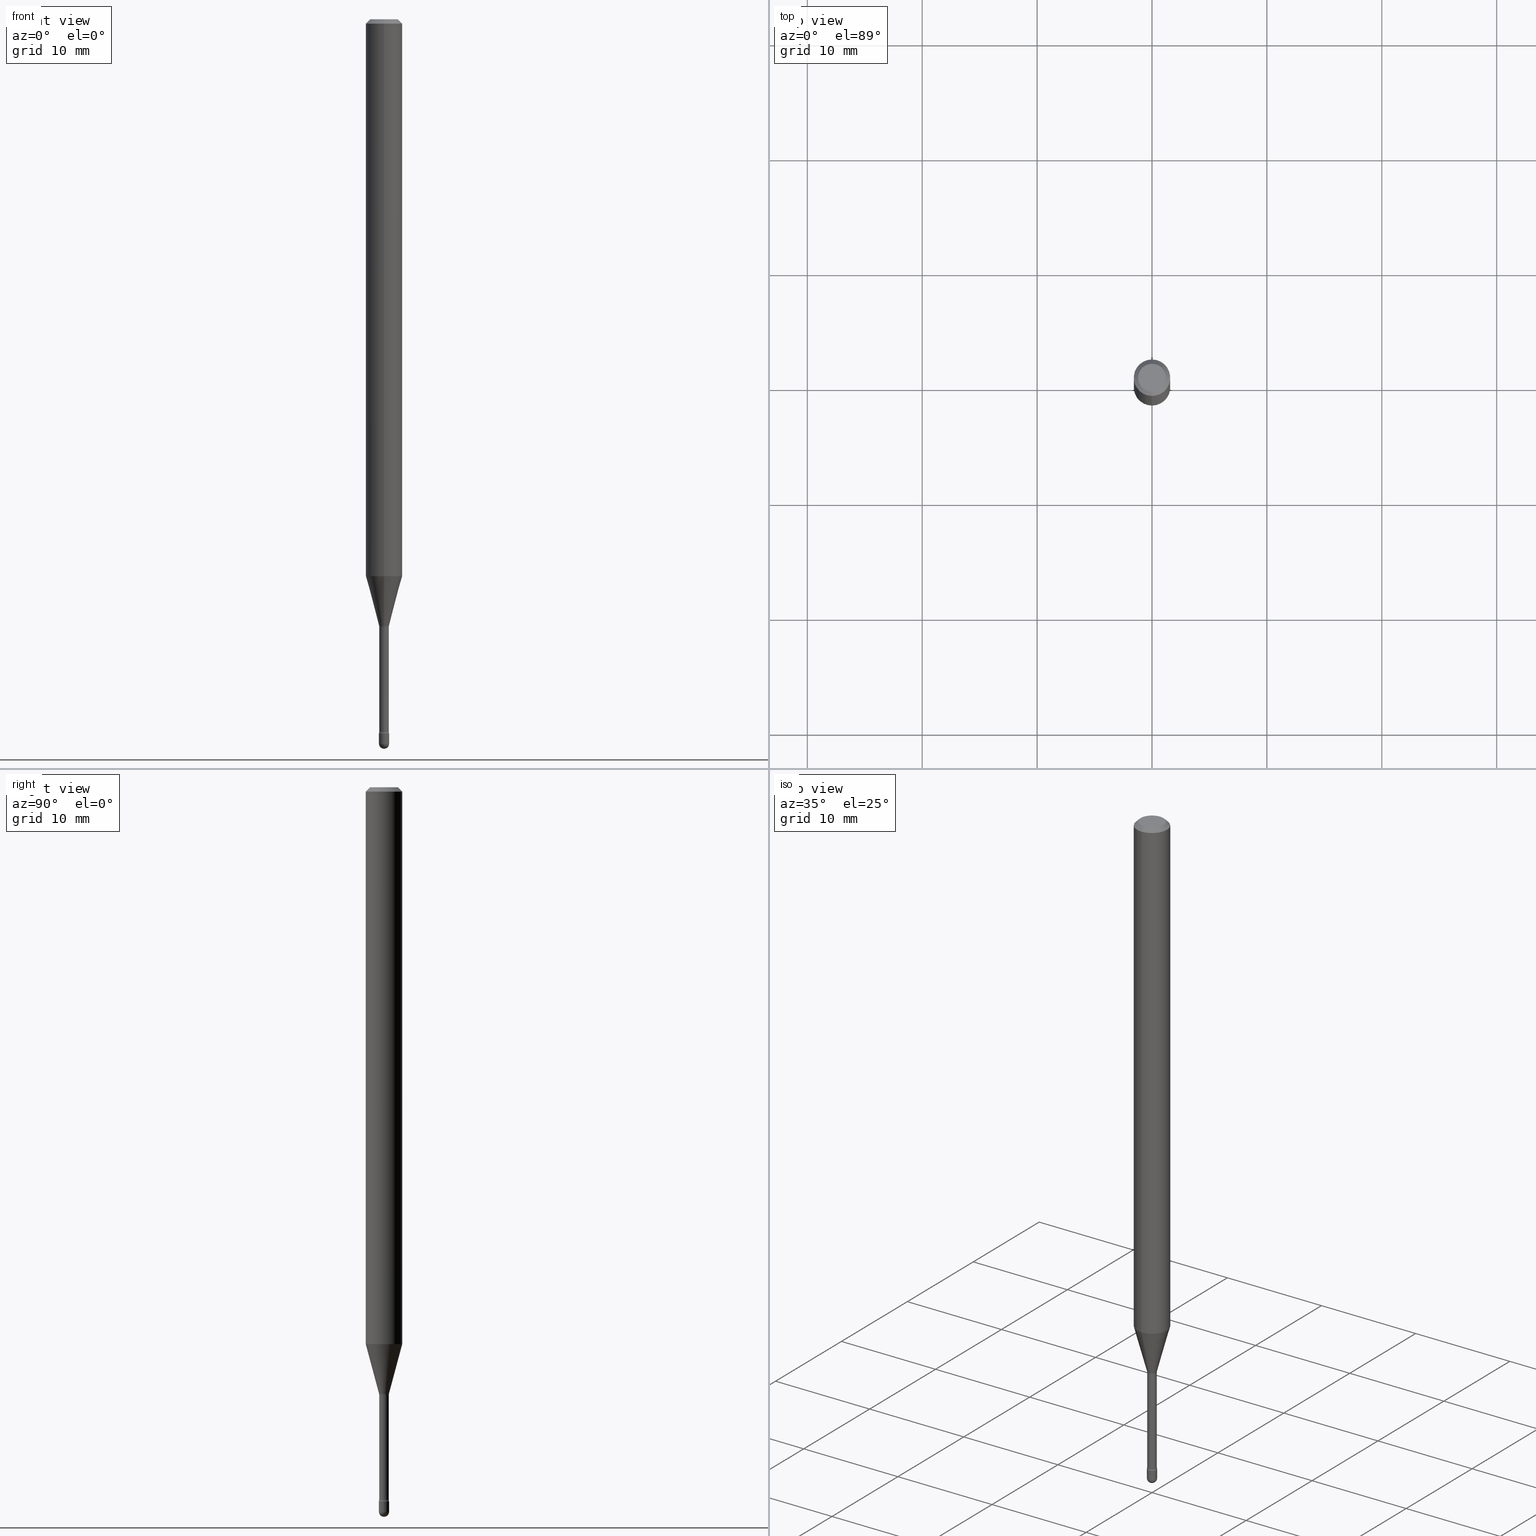
[diagram: canonical four-view strip — front | top / right | iso, engineering-drawing reading convention]
A machine part, canonical four-view strip (front | top / right | iso — engineering-drawing reading convention). The complete STEP part file that produces these views, byte-faithful:
ISO-10303-21;
HEADER;
FILE_DESCRIPTION (( 'STEP AP203' ),
    '1' );
FILE_NAME ('03892.STEP',
    '2024-04-09T20:59:43',
    ( '' ),
    ( '' ),
    'SwSTEP 2.0',
    'SolidWorks 2023',
    '' );
FILE_SCHEMA (( 'CONFIG_CONTROL_DESIGN' ));
ENDSEC;

DATA;
#1 = CALENDAR_DATE ( 2024, 9, 4 ) ;
#2 = DIRECTION ( 'NONE',  ( -2.445474670097060204E-29, 3.491472941387518154E-15, 1.000000000000000000 ) ) ;
#3 = CARTESIAN_POINT ( 'NONE',  ( 0.000000000000000000, 0.000000000000000000, 0.000000000000000000 ) ) ;
#4 = FACE_OUTER_BOUND ( 'NONE', #453, .T. ) ;
#5 = CARTESIAN_POINT ( 'NONE',  ( -1.148697360478799118E-16, -0.01645000000000860010, -2.441486607215153537 ) ) ;
#6 = DIRECTION ( 'NONE',  ( -2.445468806185136877E-29, 3.491481338843145188E-15, 1.000000000000000000 ) ) ;
#7 = DIRECTION ( 'NONE',  ( -6.982962677686265922E-15, -1.000000000000000000, 3.483106191921935554E-15 ) ) ;
#8 = CARTESIAN_POINT ( 'NONE',  ( -0.01749999999999999820, -8.481283651155627354E-15, -2.482500000000000817 ) ) ;
#9 = ADVANCED_FACE ( 'NONE', ( #486 ), #405, .T. ) ;
#10 = AXIS2_PLACEMENT_3D ( 'NONE', #102, #57, #226 ) ;
#11 = DIRECTION ( 'NONE',  ( -2.445474670097060204E-29, 3.491472941387518154E-15, 1.000000000000000000 ) ) ;
#12 = PRODUCT_RELATED_PRODUCT_CATEGORY ( 'detail', '', ( #317 ) ) ;
#13 = DESIGN_CONTEXT ( 'detailed design', #52, 'design' ) ;
#14 = CARTESIAN_POINT ( 'NONE',  ( 5.091404398006680369E-29, -7.269176118371821293E-15, -2.081974787463811261 ) ) ;
#15 = AXIS2_PLACEMENT_3D ( 'NONE', #265, #447, #362 ) ;
#16 = AXIS2_PLACEMENT_3D ( 'NONE', #442, #95, #7 ) ;
#17 = VECTOR ( 'NONE', #6, 39.37007874015748143 ) ;
#18 = DIRECTION ( 'NONE',  ( 1.000000000000000000, -6.982962677686248567E-15, 0.000000000000000000 ) ) ;
#19 = ORIENTED_EDGE ( 'NONE', *, *, #427, .T. ) ;
#20 = ORIENTED_EDGE ( 'NONE', *, *, #234, .T. ) ;
#21 = ORIENTED_EDGE ( 'NONE', *, *, #496, .F. ) ;
#22 = VECTOR ( 'NONE', #464, 39.37007874015748143 ) ;
#23 = CARTESIAN_POINT ( 'NONE',  ( 4.364351673553919652E-16, 0.06249999999999995143, -0.01500000000000030129 ) ) ;
#24 = ORIENTED_EDGE ( 'NONE', *, *, #179, .T. ) ;
#25 = LINE ( 'NONE', #23, #419 ) ;
#26 = EDGE_LOOP ( 'NONE', ( #360, #476, #84, #40 ) ) ;
#27 = DIRECTION ( 'NONE',  ( 6.982962677686265922E-15, 1.000000000000000000, -3.491472941387518154E-15 ) ) ;
#28 = AXIS2_PLACEMENT_3D ( 'NONE', #434, #291, #162 ) ;
#29 = EDGE_CURVE ( 'NONE', #342, #479, #255, .T. ) ;
#30 = CIRCLE ( 'NONE', #334, 0.01750000000000000167 ) ;
#31 = EDGE_LOOP ( 'NONE', ( #563, #541 ) ) ;
#32 = DIRECTION ( 'NONE',  ( -1.000000000000000000, 6.982962677686265922E-15, -4.883557194083112340E-29 ) ) ;
#33 = DIRECTION ( 'NONE',  ( -2.445474670097060204E-29, 3.491472941387517759E-15, 1.000000000000000000 ) ) ;
#34 = VERTEX_POINT ( 'NONE', #535 ) ;
#35 = CARTESIAN_POINT ( 'NONE',  ( -0.01750000000000000167, 1.243449787580175444E-16, -8.608136407946085539E-31 ) ) ;
#36 = DATE_TIME_ROLE ( 'creation_date' ) ;
#37 = FACE_OUTER_BOUND ( 'NONE', #288, .T. ) ;
#38 = DIRECTION ( 'NONE',  ( -6.982962677686265133E-15, -1.000000000000000000, 3.491472941387517759E-15 ) ) ;
#39 = DIRECTION ( 'NONE',  ( 1.000000000000000000, -6.982962677686265922E-15, 4.876176775795936353E-29 ) ) ;
#40 = ORIENTED_EDGE ( 'NONE', *, *, #536, .T. ) ;
#41 = AXIS2_PLACEMENT_3D ( 'NONE', #87, #344, #294 ) ;
#42 = ORGANIZATION ( 'UNSPECIFIED', 'UNSPECIFIED', '' ) ;
#43 = SHAPE_DEFINITION_REPRESENTATION ( #490, #421 ) ;
#44 = DIRECTION ( 'NONE',  ( -2.445474670097060204E-29, 3.491472941387517759E-15, 1.000000000000000000 ) ) ;
#45 = CARTESIAN_POINT ( 'NONE',  ( -0.01750000000000000167, -8.481283651155627354E-15, -2.447000000000000064 ) ) ;
#46 = EDGE_CURVE ( 'NONE', #468, #382, #331, .T. ) ;
#47 = CARTESIAN_POINT ( 'NONE',  ( -2.196141762131821067E-16, -0.03145000000000727075, -2.081974787463811261 ) ) ;
#48 = DIRECTION ( 'NONE',  ( -4.851104656540964275E-15, -0.7071067811865500152, -0.7071067811865450192 ) ) ;
#49 = ORIENTED_EDGE ( 'NONE', *, *, #223, .F. ) ;
#50 = CARTESIAN_POINT ( 'NONE',  ( 1.222018468595703801E-16, 0.01749999999999133499, -2.482500000000000817 ) ) ;
#51 = VERTEX_POINT ( 'NONE', #400 ) ;
#52 = APPLICATION_CONTEXT ( 'configuration controlled 3d designs of mechanical parts and assemblies' ) ;
#53 = AXIS2_PLACEMENT_3D ( 'NONE', #489, #264, #347 ) ;
#54 = DIRECTION ( 'NONE',  ( 1.000000000000000000, -7.105427357601001070E-15, 4.926315405702910720E-29 ) ) ;
#55 = EDGE_LOOP ( 'NONE', ( #310, #19, #270, #345 ) ) ;
#56 = EDGE_CURVE ( 'NONE', #335, #51, #408, .T. ) ;
#57 = DIRECTION ( 'NONE',  ( -2.445474670097060204E-29, 3.491472941387517759E-15, 1.000000000000000000 ) ) ;
#58 = ORIENTED_EDGE ( 'NONE', *, *, #427, .F. ) ;
#59 = LINE ( 'NONE', #543, #22 ) ;
#60 = DIRECTION ( 'NONE',  ( -6.982962677686265922E-15, -1.000000000000000000, 3.483106191921935554E-15 ) ) ;
#61 = EDGE_LOOP ( 'NONE', ( #58, #127, #73, #49 ) ) ;
#62 = CARTESIAN_POINT ( 'NONE',  ( 5.081922575239406548E-29, -7.255603739690556610E-15, -2.078092501787273338 ) ) ;
#63 = VERTEX_POINT ( 'NONE', #308 ) ;
#64 = LENGTH_MEASURE_WITH_UNIT ( LENGTH_MEASURE( 0.02539999999999999897 ), #316 );
#65 = PLANE ( 'NONE',  #566 ) ;
#66 = CC_DESIGN_PERSON_AND_ORGANIZATION_ASSIGNMENT ( #511, #557, ( #443 ) ) ;
#67 = DIRECTION ( 'NONE',  ( 1.000000000000000000, -6.982962677686305365E-15, 0.000000000000000000 ) ) ;
#68 = VECTOR ( 'NONE', #48, 39.37007874015748143 ) ;
#69 = VERTEX_POINT ( 'NONE', #50 ) ;
#70 = APPLICATION_PROTOCOL_DEFINITION ( 'international standard', 'config_control_design', 1994, #52 ) ;
#71 = APPROVAL ( #209, 'UNSPECIFIED' ) ;
#72 = COORDINATED_UNIVERSAL_TIME_OFFSET ( 5, 0, .BEHIND. ) ;
#73 = ORIENTED_EDGE ( 'NONE', *, *, #80, .T. ) ;
#74 = CARTESIAN_POINT ( 'NONE',  ( 6.070876311354602409E-29, -8.667602423678108373E-15, -2.482499999999999929 ) ) ;
#75 = FACE_OUTER_BOUND ( 'NONE', #275, .T. ) ;
#76 = CIRCLE ( 'NONE', #313, 0.01644999999999999934 ) ;
#77 = APPROVAL_PERSON_ORGANIZATION ( #340, #71, #513 ) ;
#78 = PERSON_AND_ORGANIZATION_ROLE ( 'design_supplier' ) ;
#79 = ORIENTED_EDGE ( 'NONE', *, *, #91, .T. ) ;
#80 = EDGE_CURVE ( 'NONE', #246, #307, #260, .T. ) ;
#81 = DIRECTION ( 'NONE',  ( -2.445468806185136597E-29, 3.491481338843145583E-15, 1.000000000000000000 ) ) ;
#82 = SECURITY_CLASSIFICATION_LEVEL ( 'unclassified' ) ;
#83 = DIRECTION ( 'NONE',  ( -2.445468806185136597E-29, 3.491481338843145583E-15, 1.000000000000000000 ) ) ;
#84 = ORIENTED_EDGE ( 'NONE', *, *, #285, .T. ) ;
#85 = DATE_AND_TIME ( #247, #404 ) ;
#86 = CARTESIAN_POINT ( 'NONE',  ( 5.091416606523460917E-29, -7.269158635080925513E-15, -2.081974787463811261 ) ) ;
#87 = CARTESIAN_POINT ( 'NONE',  ( 5.970579338663442113E-29, -8.524404928127174921E-15, -2.441486607215153537 ) ) ;
#88 = ORIENTED_EDGE ( 'NONE', *, *, #406, .F. ) ;
#89 = AXIS2_PLACEMENT_3D ( 'NONE', #47, #141, #353 ) ;
#90 = CIRCLE ( 'NONE', #135, 0.01750000000000000167 ) ;
#91 = EDGE_CURVE ( 'NONE', #125, #69, #495, .T. ) ;
#92 = TOROIDAL_SURFACE ( 'NONE', #240, 0.03145000000000004736, 0.01499999999999996822 ) ;
#93 = DIRECTION ( 'NONE',  ( 7.105427357600999492E-15, 1.000000000000000000, 0.000000000000000000 ) ) ;
#94 = CARTESIAN_POINT ( 'NONE',  ( 1.168842800325963800E-16, 0.01644999999999273085, -2.081974787463811261 ) ) ;
#95 = DIRECTION ( 'NONE',  ( -2.445474670097060204E-29, 3.491472941387517759E-15, 1.000000000000000000 ) ) ;
#96 = CC_DESIGN_DATE_AND_TIME_ASSIGNMENT ( #553, #36, ( #443 ) ) ;
#97 = ORIENTED_EDGE ( 'NONE', *, *, #263, .F. ) ;
#98 = CIRCLE ( 'NONE', #537, 0.01644999999999999934 ) ;
#99 = DIRECTION ( 'NONE',  ( -2.445474670097060204E-29, 3.491472941387517759E-15, 1.000000000000000000 ) ) ;
#100 = APPROVAL_PERSON_ORGANIZATION ( #118, #452, #519 ) ;
#101 = ORIENTED_EDGE ( 'NONE', *, *, #361, .T. ) ;
#102 = CARTESIAN_POINT ( 'NONE',  ( -1.169113584055446105E-44, 1.669184350826100908E-30, 4.780733988912460139E-16 ) ) ;
#103 = DIRECTION ( 'NONE',  ( -2.445474670097060204E-29, 3.491472941387517759E-15, 1.000000000000000000 ) ) ;
#104 = EDGE_CURVE ( 'NONE', #307, #503, #439, .T. ) ;
#105 = ORIENTED_EDGE ( 'NONE', *, *, #269, .T. ) ;
#106 = CONICAL_SURFACE ( 'NONE', #500, 0.01696111260566398118, 0.2617993877991500740 ) ;
#107 = DIRECTION ( 'NONE',  ( 6.982962677686265922E-15, 1.000000000000000000, 0.000000000000000000 ) ) ;
#108 = CARTESIAN_POINT ( 'NONE',  ( 5.984076517727506862E-29, -8.543634287575257299E-15, -2.447000000000000064 ) ) ;
#109 = ADVANCED_FACE ( 'NONE', ( #222 ), #379, .T. ) ;
#110 = DIRECTION ( 'NONE',  ( -6.982962677686265922E-15, -1.000000000000000000, 4.370956789862821150E-15 ) ) ;
#111 = EDGE_CURVE ( 'NONE', #63, #246, #214, .T. ) ;
#112 = CARTESIAN_POINT ( 'NONE',  ( 3.316907271900976096E-16, 0.04749999999999999362, 3.181801925437212131E-17 ) ) ;
#113 = CARTESIAN_POINT ( 'NONE',  ( -1.169113584055446105E-44, 1.669184350826100908E-30, 4.780733988912460139E-16 ) ) ;
#114 = ORIENTED_EDGE ( 'NONE', *, *, #562, .F. ) ;
#115 = VECTOR ( 'NONE', #11, 39.37007874015748143 ) ;
#116 = SECURITY_CLASSIFICATION ( '', '', #82 ) ;
#117 = COORDINATED_UNIVERSAL_TIME_OFFSET ( 5, 0, .BEHIND. ) ;
#118 = PERSON_AND_ORGANIZATION ( #396, #42 ) ;
#119 = ORIENTED_EDGE ( 'NONE', *, *, #56, .T. ) ;
#120 = FACE_OUTER_BOUND ( 'NONE', #251, .T. ) ;
#121 = DIRECTION ( 'NONE',  ( -6.982962677686266711E-15, -1.000000000000000000, 0.000000000000000000 ) ) ;
#122 = AXIS2_PLACEMENT_3D ( 'NONE', #14, #433, #38 ) ;
#123 = AXIS2_PLACEMENT_3D ( 'NONE', #373, #148, #110 ) ;
#124 = DATE_AND_TIME ( #201, #290 ) ;
#125 = VERTEX_POINT ( 'NONE', #169 ) ;
#126 = FACE_OUTER_BOUND ( 'NONE', #324, .T. ) ;
#127 = ORIENTED_EDGE ( 'NONE', *, *, #111, .T. ) ;
#128 = CARTESIAN_POINT ( 'NONE',  ( -1.169113584055446105E-44, 1.669184350826100908E-30, 4.780733988912460139E-16 ) ) ;
#129 = DIRECTION ( 'NONE',  ( -1.000000000000000000, 6.982962677686265922E-15, -4.883557194083112340E-29 ) ) ;
#130 = CARTESIAN_POINT ( 'NONE',  ( 0.01750000000000000167, -1.222018468595096625E-16, 8.533309357642889039E-31 ) ) ;
#131 = EDGE_CURVE ( 'NONE', #468, #549, #239, .T. ) ;
#132 = CARTESIAN_POINT ( 'NONE',  ( 5.081922575239406548E-29, -7.255603739690556610E-15, -2.078092501787273338 ) ) ;
#133 = CARTESIAN_POINT ( 'NONE',  ( -1.148697360479393475E-16, -0.01645000000000003751, 5.355081287770708863E-16 ) ) ;
#134 = DIRECTION ( 'NONE',  ( 2.445474670097060204E-29, -3.491472941387517759E-15, -1.000000000000000000 ) ) ;
#135 = AXIS2_PLACEMENT_3D ( 'NONE', #411, #457, #18 ) ;
#136 = CC_DESIGN_SECURITY_CLASSIFICATION ( #116, ( #556 ) ) ;
#137 = ADVANCED_FACE ( 'NONE', ( #529 ), #369, .F. ) ;
#138 = FACE_OUTER_BOUND ( 'NONE', #208, .T. ) ;
#139 = FACE_OUTER_BOUND ( 'NONE', #61, .T. ) ;
#140 = EDGE_LOOP ( 'NONE', ( #238, #515, #273, #395 ) ) ;
#141 = DIRECTION ( 'NONE',  ( -1.000000000000000000, 6.982962677686265922E-15, -4.883557194083112340E-29 ) ) ;
#142 = ORIENTED_EDGE ( 'NONE', *, *, #285, .F. ) ;
#143 = CIRCLE ( 'NONE', #510, 0.01696111260566398118 ) ;
#144 = CC_DESIGN_PERSON_AND_ORGANIZATION_ASSIGNMENT ( #160, #473, ( #317 ) ) ;
#145 = ORIENTED_EDGE ( 'NONE', *, *, #562, .T. ) ;
#146 = DIRECTION ( 'NONE',  ( -2.445474670097060204E-29, 3.491472941387517759E-15, 1.000000000000000000 ) ) ;
#147 = DIRECTION ( 'NONE',  ( 1.000000000000000000, -6.982962677686265922E-15, 4.883557194083112340E-29 ) ) ;
#148 = DIRECTION ( 'NONE',  ( -2.445474670097060204E-29, 3.491472941387517759E-15, 1.000000000000000000 ) ) ;
#149 = DIRECTION ( 'NONE',  ( 1.839019923739598738E-15, 0.2588190451025247363, 0.9659258262890673130 ) ) ;
#150 = VERTEX_POINT ( 'NONE', #306 ) ;
#151 = VECTOR ( 'NONE', #2, 39.37007874015748143 ) ;
#152 = CARTESIAN_POINT ( 'NONE',  ( 3.840629472727447874E-16, 0.04749999999999999362, -2.485923956665947867E-16 ) ) ;
#153 = CIRCLE ( 'NONE', #440, 0.01749999999999999820 ) ;
#154 = VERTEX_POINT ( 'NONE', #5 ) ;
#155 = EDGE_CURVE ( 'NONE', #51, #150, #509, .T. ) ;
#156 = CYLINDRICAL_SURFACE ( 'NONE', #466, 0.06250000000000000000 ) ;
#157 = FACE_OUTER_BOUND ( 'NONE', #533, .T. ) ;
#158 = AXIS2_PLACEMENT_3D ( 'NONE', #212, #348, #394 ) ;
#159 = CC_DESIGN_APPROVAL ( #71, ( #443 ) ) ;
#160 = PERSON_AND_ORGANIZATION ( #396, #42 ) ;
#161 = DIRECTION ( 'NONE',  ( 1.000000000000000000, 0.000000000000000000, 0.000000000000000000 ) ) ;
#162 = DIRECTION ( 'NONE',  ( 1.000000000000000000, -6.982962677686265922E-15, 4.876176775795936353E-29 ) ) ;
#163 = ORIENTED_EDGE ( 'NONE', *, *, #352, .T. ) ;
#164 = CARTESIAN_POINT ( 'NONE',  ( -3.773273898774340269E-16, -0.04749999999999999362, 8.309753376521934276E-17 ) ) ;
#165 = ORIENTED_EDGE ( 'NONE', *, *, #269, .F. ) ;
#166 = VECTOR ( 'NONE', #482, 39.37007874015748143 ) ;
#167 = CC_DESIGN_APPROVAL ( #452, ( #556 ) ) ;
#168 = EDGE_CURVE ( 'NONE', #335, #325, #524, .T. ) ;
#169 = CARTESIAN_POINT ( 'NONE',  ( 0.01749999999999999820, -8.727830476773153796E-15, -2.482500000000000817 ) ) ;
#170 = CARTESIAN_POINT ( 'NONE',  ( 5.091416606523460917E-29, -7.269158635080925513E-15, -2.081974787463811261 ) ) ;
#171 = CARTESIAN_POINT ( 'NONE',  ( 1.168842800325367471E-16, 0.01645000000000003751, 4.206386690054212895E-16 ) ) ;
#172 = CARTESIAN_POINT ( 'NONE',  ( 6.070876311354603530E-29, -8.667602423678111529E-15, -2.482500000000000817 ) ) ;
#173 = CARTESIAN_POINT ( 'NONE',  ( -1.184388162973348087E-16, -0.01696111260567123580, -2.078092501787273338 ) ) ;
#174 = CARTESIAN_POINT ( 'NONE',  ( 4.666305739014466842E-29, -6.662215897482046278E-15, -1.908139060311453861 ) ) ;
#175 = CARTESIAN_POINT ( 'NONE',  ( -1.148697360478881455E-16, -0.01645000000000726784, -2.081974787463811261 ) ) ;
#176 = VECTOR ( 'NONE', #432, 39.37007874015748854 ) ;
#177 = CARTESIAN_POINT ( 'NONE',  ( -1.243449787579568514E-16, -0.01750000000000867181, -2.482500000000000817 ) ) ;
#178 = ORIENTED_EDGE ( 'NONE', *, *, #496, .T. ) ;
#179 = EDGE_CURVE ( 'NONE', #325, #382, #98, .T. ) ;
#180 = DIRECTION ( 'NONE',  ( -6.982962677686265922E-15, -1.000000000000000000, 4.370956789862821150E-15 ) ) ;
#181 = CLOSED_SHELL ( 'NONE', ( #366, #375, #413, #9, #322 ) ) ;
#182 = AXIS2_PLACEMENT_3D ( 'NONE', #297, #254, #438 ) ;
#183 = CIRCLE ( 'NONE', #123, 0.06250000000000000000 ) ;
#184 = ORIENTED_EDGE ( 'NONE', *, *, #186, .T. ) ;
#185 =( NAMED_UNIT ( * ) PLANE_ANGLE_UNIT ( ) SI_UNIT ( $, .RADIAN. ) );
#186 = EDGE_CURVE ( 'NONE', #154, #382, #526, .T. ) ;
#187 = DIRECTION ( 'NONE',  ( -2.445474670097060204E-29, 3.491472941387517759E-15, 1.000000000000000000 ) ) ;
#188 = VERTEX_POINT ( 'NONE', #177 ) ;
#189 = TOROIDAL_SURFACE ( 'NONE', #41, 0.03145000000000004736, 0.01499999999999996822 ) ;
#190 = APPLICATION_PROTOCOL_DEFINITION ( 'international standard', 'config_control_design', 1994, #552 ) ;
#191 = CIRCLE ( 'NONE', #393, 0.01750000000000000860 ) ;
#192 = DIRECTION ( 'NONE',  ( 4.937700262164548042E-15, 0.7071067811865451302, -0.7071067811865499042 ) ) ;
#193 = ORIENTED_EDGE ( 'NONE', *, *, #263, .T. ) ;
#194 = DIRECTION ( 'NONE',  ( 6.982962677686265922E-15, 1.000000000000000000, 0.000000000000000000 ) ) ;
#195 = CARTESIAN_POINT ( 'NONE',  ( 2.823025816868981885E-16, 0.01696111260565672657, -2.078092501787273338 ) ) ;
#196 = ORIENTED_EDGE ( 'NONE', *, *, #330, .F. ) ;
#197 = ORIENTED_EDGE ( 'NONE', *, *, #29, .T. ) ;
#198 = AXIS2_PLACEMENT_3D ( 'NONE', #216, #474, #531 ) ;
#199 = ADVANCED_FACE ( 'NONE', ( #139 ), #451, .T. ) ;
#200 = AXIS2_PLACEMENT_3D ( 'NONE', #523, #481, #539 ) ;
#201 = CALENDAR_DATE ( 2024, 9, 4 ) ;
#202 = EDGE_LOOP ( 'NONE', ( #455, #105, #262, #193, #233 ) ) ;
#203 = CARTESIAN_POINT ( 'NONE',  ( -2.196141762131736511E-16, -0.03145000000000856832, -2.441486607215153537 ) ) ;
#204 = EDGE_CURVE ( 'NONE', #497, #359, #90, .T. ) ;
#205 = CARTESIAN_POINT ( 'NONE',  ( 0.000000000000000000, 0.000000000000000000, 0.000000000000000000 ) ) ;
#206 = ORIENTED_EDGE ( 'NONE', *, *, #46, .T. ) ;
#207 = CARTESIAN_POINT ( 'NONE',  ( -4.287811248607203282E-16, -0.06250000000000005551, -0.01499999999999986587 ) ) ;
#208 = EDGE_LOOP ( 'NONE', ( #272, #356, #165, #21 ) ) ;
#209 = APPROVAL_STATUS ( 'not_yet_approved' ) ;
#210 = PLANE ( 'NONE',  #200 ) ;
#211 = DIRECTION ( 'NONE',  ( 6.982962677686265922E-15, 1.000000000000000000, -3.483106191921935554E-15 ) ) ;
#212 = CARTESIAN_POINT ( 'NONE',  ( 2.234656903966023814E-16, 0.03144999999999272683, -2.081974787463811261 ) ) ;
#213 = ORIENTED_EDGE ( 'NONE', *, *, #462, .T. ) ;
#214 = CIRCLE ( 'NONE', #332, 0.06250000000000000000 ) ;
#215 = CARTESIAN_POINT ( 'NONE',  ( 2.234656903966115026E-16, 0.03144999999999151946, -2.441486607215153537 ) ) ;
#216 = CARTESIAN_POINT ( 'NONE',  ( 1.222018468595694927E-16, 0.01749999999999145642, -2.447000000000000064 ) ) ;
#217 = DIRECTION ( 'NONE',  ( 6.982962677686265922E-15, 1.000000000000000000, 0.000000000000000000 ) ) ;
#218 = CYLINDRICAL_SURFACE ( 'NONE', #471, 0.01750000000000000167 ) ;
#219 = ORIENTED_EDGE ( 'NONE', *, *, #179, .F. ) ;
#220 = CARTESIAN_POINT ( 'NONE',  ( -4.364351673553916201E-16, -0.06250000000000000000, 6.962904577279658492E-16 ) ) ;
#221 = CONICAL_SURFACE ( 'NONE', #343, 0.06250000000000000000, 0.7853981633974483900 ) ;
#222 = FACE_OUTER_BOUND ( 'NONE', #140, .T. ) ;
#223 = EDGE_CURVE ( 'NONE', #503, #307, #256, .T. ) ;
#224 = DIRECTION ( 'NONE',  ( -6.982962677686266711E-15, -1.000000000000000000, 0.000000000000000000 ) ) ;
#225 = AXIS2_PLACEMENT_3D ( 'NONE', #244, #386, #525 ) ;
#226 = DIRECTION ( 'NONE',  ( -6.982962677686265922E-15, -1.000000000000000000, 3.491472941387516576E-15 ) ) ;
#227 = LOCAL_TIME ( 16, 59, 43.00000000000000000, #337 ) ;
#228 = CYLINDRICAL_SURFACE ( 'NONE', #410, 0.01645000000000003751 ) ;
#229 = ORIENTED_EDGE ( 'NONE', *, *, #91, .F. ) ;
#230 = ORIENTED_EDGE ( 'NONE', *, *, #204, .T. ) ;
#231 = CARTESIAN_POINT ( 'NONE',  ( 5.970579338663442113E-29, -8.524404928127174921E-15, -2.441486607215153537 ) ) ;
#232 = CARTESIAN_POINT ( 'NONE',  ( -1.184388162973348087E-16, -0.01696111260567123580, -2.078092501787273338 ) ) ;
#233 = ORIENTED_EDGE ( 'NONE', *, *, #236, .F. ) ;
#234 = EDGE_CURVE ( 'NONE', #549, #63, #367, .T. ) ;
#235 = DIRECTION ( 'NONE',  ( -6.982962677686266711E-15, -1.000000000000000000, 3.491472941387517759E-15 ) ) ;
#236 = EDGE_CURVE ( 'NONE', #359, #497, #565, .T. ) ;
#237 = COORDINATED_UNIVERSAL_TIME_OFFSET ( 5, 0, .BEHIND. ) ;
#238 = ORIENTED_EDGE ( 'NONE', *, *, #309, .F. ) ;
#239 = CIRCLE ( 'NONE', #182, 0.01696111260566398118 ) ;
#240 = AXIS2_PLACEMENT_3D ( 'NONE', #231, #146, #501 ) ;
#241 = DIRECTION ( 'NONE',  ( -1.000000000000000000, 6.982962677686265922E-15, -4.883557194083112340E-29 ) ) ;
#242 = DATE_TIME_ROLE ( 'classification_date' ) ;
#243 = EDGE_LOOP ( 'NONE', ( #445, #425, #370, #506 ) ) ;
#244 = CARTESIAN_POINT ( 'NONE',  ( 5.081922575239406548E-29, -7.255603739690556610E-15, -2.078092501787273338 ) ) ;
#245 = EDGE_CURVE ( 'NONE', #34, #188, #391, .T. ) ;
#246 = VERTEX_POINT ( 'NONE', #561 ) ;
#247 = CALENDAR_DATE ( 2024, 9, 4 ) ;
#248 = LINE ( 'NONE', #173, #176 ) ;
#249 = ORIENTED_EDGE ( 'NONE', *, *, #168, .T. ) ;
#250 = LINE ( 'NONE', #35, #448 ) ;
#251 = EDGE_LOOP ( 'NONE', ( #383, #20, #315, #88 ) ) ;
#252 = DIRECTION ( 'NONE',  ( 0.000000000000000000, 0.000000000000000000, 1.000000000000000000 ) ) ;
#253 = DIRECTION ( 'NONE',  ( -2.445474670097060204E-29, 3.491472941387517759E-15, 1.000000000000000000 ) ) ;
#254 = DIRECTION ( 'NONE',  ( -2.445474670097060204E-29, 3.491472941387517759E-15, 1.000000000000000000 ) ) ;
#255 = CIRCLE ( 'NONE', #15, 0.04749999999999999362 ) ;
#256 = CIRCLE ( 'NONE', #555, 0.06250000000000000000 ) ;
#257 = DIRECTION ( 'NONE',  ( -7.105427357601001859E-15, -1.000000000000000000, 0.000000000000000000 ) ) ;
#258 = VECTOR ( 'NONE', #149, 39.37007874015748854 ) ;
#259 = AXIS2_PLACEMENT_3D ( 'NONE', #546, #103, #538 ) ;
#260 = LINE ( 'NONE', #220, #151 ) ;
#261 = CARTESIAN_POINT ( 'NONE',  ( 1.206146293953369389E-16, 0.01644999999999155471, -2.441486607215153537 ) ) ;
#262 = ORIENTED_EDGE ( 'NONE', *, *, #478, .T. ) ;
#263 = EDGE_CURVE ( 'NONE', #125, #497, #477, .T. ) ;
#264 = DIRECTION ( 'NONE',  ( -2.445474670097060204E-29, 3.491472941387517759E-15, 1.000000000000000000 ) ) ;
#265 = CARTESIAN_POINT ( 'NONE',  ( 2.023595497858164434E-45, -2.889064015335042725E-31, -8.274743095068772814E-17 ) ) ;
#266 = CIRCLE ( 'NONE', #301, 0.01645000000000007567 ) ;
#267 = CC_DESIGN_PERSON_AND_ORGANIZATION_ASSIGNMENT ( #346, #78, ( #556 ) ) ;
#268 = ORIENTED_EDGE ( 'NONE', *, *, #406, .T. ) ;
#269 = EDGE_CURVE ( 'NONE', #271, #188, #363, .T. ) ;
#270 = ORIENTED_EDGE ( 'NONE', *, *, #104, .F. ) ;
#271 = VERTEX_POINT ( 'NONE', #8 ) ;
#272 = ORIENTED_EDGE ( 'NONE', *, *, #462, .F. ) ;
#273 = ORIENTED_EDGE ( 'NONE', *, *, #491, .T. ) ;
#274 = DIRECTION ( 'NONE',  ( -6.982962677686265133E-15, -1.000000000000000000, 3.491472941387517759E-15 ) ) ;
#275 = EDGE_LOOP ( 'NONE', ( #178, #163, #304, #97, #79 ) ) ;
#276 = CARTESIAN_POINT ( 'NONE',  ( 5.091404398006680369E-29, -7.269176118371821293E-15, -2.081974787463811261 ) ) ;
#277 = FACE_OUTER_BOUND ( 'NONE', #435, .T. ) ;
#278 = CARTESIAN_POINT ( 'NONE',  ( 0.01750000000000000167, -8.665856683008687659E-15, -2.447000000000000064 ) ) ;
#279 =( CONVERSION_BASED_UNIT ( 'INCH', #64 ) LENGTH_UNIT ( ) NAMED_UNIT ( #374 ) );
#280 = TOROIDAL_SURFACE ( 'NONE', #449, 0.03144999999999999879, 0.01500000000000002373 ) ;
#281 = ORIENTED_EDGE ( 'NONE', *, *, #155, .T. ) ;
#282 = DIRECTION ( 'NONE',  ( 2.445474670097059644E-29, -3.491472941387518154E-15, -1.000000000000000000 ) ) ;
#283 = PERSON_AND_ORGANIZATION ( #396, #42 ) ;
#284 = ORIENTED_EDGE ( 'NONE', *, *, #131, .F. ) ;
#285 = EDGE_CURVE ( 'NONE', #154, #150, #456, .T. ) ;
#286 = DIRECTION ( 'NONE',  ( -6.982962677686265133E-15, -1.000000000000000000, 0.000000000000000000 ) ) ;
#287 = COORDINATED_UNIVERSAL_TIME_OFFSET ( 5, 0, .BEHIND. ) ;
#288 = EDGE_LOOP ( 'NONE', ( #230, #446 ) ) ;
#289 = AXIS2_PLACEMENT_3D ( 'NONE', #300, #311, #492 ) ;
#290 = LOCAL_TIME ( 16, 59, 43.00000000000000000, #72 ) ;
#291 = DIRECTION ( 'NONE',  ( -2.445468806185136597E-29, 3.491481338843145583E-15, 1.000000000000000000 ) ) ;
#292 = CALENDAR_DATE ( 2024, 9, 4 ) ;
#293 = FACE_OUTER_BOUND ( 'NONE', #407, .T. ) ;
#294 = DIRECTION ( 'NONE',  ( -6.982962677686265133E-15, -1.000000000000000000, 3.491472941387517759E-15 ) ) ;
#295 = ORIENTED_EDGE ( 'NONE', *, *, #245, .F. ) ;
#296 = APPROVAL_DATE_TIME ( #378, #452 ) ;
#297 = CARTESIAN_POINT ( 'NONE',  ( 5.081922575239406548E-29, -7.255603739690556610E-15, -2.078092501787273338 ) ) ;
#298 = DIRECTION ( 'NONE',  ( -2.445468806185136877E-29, 3.491481338843145188E-15, 1.000000000000000000 ) ) ;
#299 = ORIENTED_EDGE ( 'NONE', *, *, #234, .F. ) ;
#300 = CARTESIAN_POINT ( 'NONE',  ( 6.070876311354603530E-29, -8.667602423678111529E-15, -2.482500000000000817 ) ) ;
#301 = AXIS2_PLACEMENT_3D ( 'NONE', #517, #470, #121 ) ;
#302 = CARTESIAN_POINT ( 'NONE',  ( 6.070876311354602409E-29, -8.667602423678108373E-15, -2.482499999999999929 ) ) ;
#303 = APPROVAL_PERSON_ORGANIZATION ( #283, #392, #429 ) ;
#304 = ORIENTED_EDGE ( 'NONE', *, *, #204, .F. ) ;
#305 = EDGE_CURVE ( 'NONE', #382, #325, #76, .T. ) ;
#306 = CARTESIAN_POINT ( 'NONE',  ( -1.222018468594496844E-16, -0.01750000000000852957, -2.447000000000000064 ) ) ;
#307 = VERTEX_POINT ( 'NONE', #430 ) ;
#308 = CARTESIAN_POINT ( 'NONE',  ( 4.440892098501091590E-16, 0.06249999999999333172, -1.908139060311454083 ) ) ;
#309 = EDGE_CURVE ( 'NONE', #342, #307, #401, .T. ) ;
#310 = ORIENTED_EDGE ( 'NONE', *, *, #436, .T. ) ;
#311 = DIRECTION ( 'NONE',  ( -2.445468806185136597E-29, 3.491481338843145583E-15, 1.000000000000000000 ) ) ;
#312 = ADVANCED_FACE ( 'NONE', ( #339 ), #221, .T. ) ;
#313 = AXIS2_PLACEMENT_3D ( 'NONE', #170, #351, #286 ) ;
#314 = CIRCLE ( 'NONE', #259, 0.01645000000000007567 ) ;
#315 = ORIENTED_EDGE ( 'NONE', *, *, #436, .F. ) ;
#316 =( LENGTH_UNIT ( ) NAMED_UNIT ( * ) SI_UNIT ( $, .METRE. ) );
#317 = PRODUCT ( '03892', '03892', '', ( #516 ) ) ;
#318 = CARTESIAN_POINT ( 'NONE',  ( 3.668212005145610783E-31, -5.237209412081306024E-17, -0.01500000000000008271 ) ) ;
#319 = DIRECTION ( 'NONE',  ( -2.445474670097060204E-29, 3.491472941387517759E-15, 1.000000000000000000 ) ) ;
#320 = AXIS2_PLACEMENT_3D ( 'NONE', #203, #241, #505 ) ;
#321 = CARTESIAN_POINT ( 'NONE',  ( 5.984062168735030320E-29, -8.543654836149177676E-15, -2.447000000000000064 ) ) ;
#322 = ADVANCED_FACE ( 'NONE', ( #327 ), #218, .T. ) ;
#323 = AXIS2_PLACEMENT_3D ( 'NONE', #205, #252, #161 ) ;
#324 = EDGE_LOOP ( 'NONE', ( #114, #119, #281, #142 ) ) ;
#325 = VERTEX_POINT ( 'NONE', #94 ) ;
#326 = CC_DESIGN_PERSON_AND_ORGANIZATION_ASSIGNMENT ( #469, #480, ( #556 ) ) ;
#327 = FACE_OUTER_BOUND ( 'NONE', #202, .T. ) ;
#328 = DIRECTION ( 'NONE',  ( -6.982962677686265922E-15, -1.000000000000000000, 0.000000000000000000 ) ) ;
#329 = EDGE_LOOP ( 'NONE', ( #295, #213, #229, #532 ) ) ;
#330 = EDGE_CURVE ( 'NONE', #549, #325, #409, .T. ) ;
#331 = CIRCLE ( 'NONE', #89, 0.01500000000000002373 ) ;
#332 = AXIS2_PLACEMENT_3D ( 'NONE', #174, #99, #180 ) ;
#333 =( GEOMETRIC_REPRESENTATION_CONTEXT ( 3 ) GLOBAL_UNCERTAINTY_ASSIGNED_CONTEXT ( ( #387 ) ) GLOBAL_UNIT_ASSIGNED_CONTEXT ( ( #279, #185, #414 ) ) REPRESENTATION_CONTEXT ( 'NONE', 'WORKASPACE' ) );
#334 = AXIS2_PLACEMENT_3D ( 'NONE', #108, #187, #328 ) ;
#335 = VERTEX_POINT ( 'NONE', #261 ) ;
#336 = ADVANCED_FACE ( 'NONE', ( #120 ), #485, .T. ) ;
#337 = COORDINATED_UNIVERSAL_TIME_OFFSET ( 5, 0, .BEHIND. ) ;
#338 = EDGE_LOOP ( 'NONE', ( #458, #145, #184, #219 ) ) ;
#339 = FACE_OUTER_BOUND ( 'NONE', #243, .T. ) ;
#340 = PERSON_AND_ORGANIZATION ( #396, #42 ) ;
#341 = DIRECTION ( 'NONE',  ( -6.982962677686266711E-15, -1.000000000000000000, 3.491472941387516971E-15 ) ) ;
#342 = VERTEX_POINT ( 'NONE', #164 ) ;
#343 = AXIS2_PLACEMENT_3D ( 'NONE', #564, #134, #488 ) ;
#344 = DIRECTION ( 'NONE',  ( -2.445474670097060204E-29, 3.491472941387517759E-15, 1.000000000000000000 ) ) ;
#345 = ORIENTED_EDGE ( 'NONE', *, *, #80, .F. ) ;
#346 = PERSON_AND_ORGANIZATION ( #396, #42 ) ;
#347 = DIRECTION ( 'NONE',  ( -6.982962677686265922E-15, -1.000000000000000000, 0.000000000000000000 ) ) ;
#348 = DIRECTION ( 'NONE',  ( 1.000000000000000000, -7.105427357601001070E-15, 4.926315405702910720E-29 ) ) ;
#349 = DIRECTION ( 'NONE',  ( -6.982962677686266711E-15, -1.000000000000000000, 0.000000000000000000 ) ) ;
#350 = DIRECTION ( 'NONE',  ( -6.982962677686265133E-15, -1.000000000000000000, 0.000000000000000000 ) ) ;
#351 = DIRECTION ( 'NONE',  ( -2.445474670097060204E-29, 3.491472941387517759E-15, 1.000000000000000000 ) ) ;
#352 = EDGE_CURVE ( 'NONE', #271, #359, #250, .T. ) ;
#353 = DIRECTION ( 'NONE',  ( -6.982962677686265133E-15, -1.000000000000000000, 0.000000000000000000 ) ) ;
#354 = AXIS2_PLACEMENT_3D ( 'NONE', #128, #33, #341 ) ;
#355 = SPHERICAL_SURFACE ( 'NONE', #528, 0.01750000000000000860 ) ;
#356 = ORIENTED_EDGE ( 'NONE', *, *, #245, .T. ) ;
#357 = LOCAL_TIME ( 16, 59, 43.00000000000000000, #237 ) ;
#358 = ADVANCED_FACE ( 'NONE', ( #126 ), #189, .F. ) ;
#359 = VERTEX_POINT ( 'NONE', #45 ) ;
#360 = ORIENTED_EDGE ( 'NONE', *, *, #56, .F. ) ;
#361 = EDGE_CURVE ( 'NONE', #154, #335, #266, .T. ) ;
#362 = DIRECTION ( 'NONE',  ( -6.982962677686266711E-15, -1.000000000000000000, 3.491472941387517759E-15 ) ) ;
#363 = CIRCLE ( 'NONE', #418, 0.01749999999999999820 ) ;
#364 = CIRCLE ( 'NONE', #472, 0.01749999999999999820 ) ;
#365 = FACE_OUTER_BOUND ( 'NONE', #338, .T. ) ;
#366 = ADVANCED_FACE ( 'NONE', ( #75 ), #428, .T. ) ;
#367 = LINE ( 'NONE', #544, #258 ) ;
#368 = DIRECTION ( 'NONE',  ( -2.445474670097060204E-29, 3.491472941387517759E-15, 1.000000000000000000 ) ) ;
#369 = TOROIDAL_SURFACE ( 'NONE', #122, 0.03144999999999999879, 0.01500000000000002373 ) ;
#370 = ORIENTED_EDGE ( 'NONE', *, *, #104, .T. ) ;
#371 = ADVANCED_FACE ( 'NONE', ( #483 ), #441, .F. ) ;
#372 = CARTESIAN_POINT ( 'NONE',  ( -1.169113584055446105E-44, 1.669184350826100908E-30, 4.780733988912460139E-16 ) ) ;
#373 = CARTESIAN_POINT ( 'NONE',  ( 4.666305739014466842E-29, -6.662215897482046278E-15, -1.908139060311453861 ) ) ;
#374 = DIMENSIONAL_EXPONENTS ( 1.000000000000000000, 0.000000000000000000, 0.000000000000000000, 0.000000000000000000, 0.000000000000000000, 0.000000000000000000, 0.000000000000000000 ) ;
#375 = ADVANCED_FACE ( 'NONE', ( #138 ), #355, .T. ) ;
#376 = DIRECTION ( 'NONE',  ( -2.445468806185136597E-29, 3.491481338843145583E-15, 1.000000000000000000 ) ) ;
#377 = ORIENTED_EDGE ( 'NONE', *, *, #554, .T. ) ;
#378 = DATE_AND_TIME ( #1, #530 ) ;
#379 = CONICAL_SURFACE ( 'NONE', #465, 0.06250000000000000000, 0.7853981633974483900 ) ;
#380 = CC_DESIGN_APPROVAL ( #392, ( #116 ) ) ;
#381 = APPROVAL_DATE_TIME ( #431, #71 ) ;
#382 = VERTEX_POINT ( 'NONE', #175 ) ;
#383 = ORIENTED_EDGE ( 'NONE', *, *, #131, .T. ) ;
#384 = PERSON_AND_ORGANIZATION ( #396, #42 ) ;
#385 = ORIENTED_EDGE ( 'NONE', *, *, #305, .T. ) ;
#386 = DIRECTION ( 'NONE',  ( -2.445474670097060204E-29, 3.491472941387517759E-15, 1.000000000000000000 ) ) ;
#387 = UNCERTAINTY_MEASURE_WITH_UNIT (LENGTH_MEASURE( 1.000000000000000082E-05 ), #279, 'distance_accuracy_value', 'NONE');
#388 = DIRECTION ( 'NONE',  ( 1.000000000000000000, -6.982962677686248567E-15, 0.000000000000000000 ) ) ;
#389 = CALENDAR_DATE ( 2024, 9, 4 ) ;
#390 = CARTESIAN_POINT ( 'NONE',  ( 6.070876311354602409E-29, -8.667602423678108373E-15, -2.482499999999999929 ) ) ;
#391 = CIRCLE ( 'NONE', #518, 0.01750000000000000860 ) ;
#392 = APPROVAL ( #437, 'UNSPECIFIED' ) ;
#393 = AXIS2_PLACEMENT_3D ( 'NONE', #74, #147, #107 ) ;
#394 = DIRECTION ( 'NONE',  ( 7.105427357600999492E-15, 1.000000000000000000, 0.000000000000000000 ) ) ;
#395 = ORIENTED_EDGE ( 'NONE', *, *, #223, .T. ) ;
#396 = PERSON ( 'UNSPECIFIED', 'UNSPECIFIED', 'UNSPECIFIED', ('UNSPECIFIED'), ('UNSPECIFIED'), ('UNSPECIFIED') ) ;
#397 = CYLINDRICAL_SURFACE ( 'NONE', #354, 0.01645000000000003751 ) ;
#398 = ADVANCED_FACE ( 'NONE', ( #4 ), #397, .T. ) ;
#399 = CARTESIAN_POINT ( 'NONE',  ( 3.668212005145610783E-31, -5.237209412081306024E-17, -0.01500000000000008271 ) ) ;
#400 = CARTESIAN_POINT ( 'NONE',  ( 1.243449787580772513E-16, 0.01749999999999144254, -2.447000000000000064 ) ) ;
#401 = LINE ( 'NONE', #207, #68 ) ;
#402 = ORIENTED_EDGE ( 'NONE', *, *, #46, .F. ) ;
#403 = ADVANCED_FACE ( 'NONE', ( #293 ), #106, .T. ) ;
#404 = LOCAL_TIME ( 16, 59, 43.00000000000000000, #287 ) ;
#405 = SPHERICAL_SURFACE ( 'NONE', #507, 0.01750000000000000860 ) ;
#406 = EDGE_CURVE ( 'NONE', #468, #246, #248, .T. ) ;
#407 = EDGE_LOOP ( 'NONE', ( #299, #558, #268, #545 ) ) ;
#408 = CIRCLE ( 'NONE', #484, 0.01499999999999996822 ) ;
#409 = CIRCLE ( 'NONE', #158, 0.01500000000000002373 ) ;
#410 = AXIS2_PLACEMENT_3D ( 'NONE', #372, #412, #498 ) ;
#411 = CARTESIAN_POINT ( 'NONE',  ( 5.984062168735030320E-29, -8.543654836149177676E-15, -2.447000000000000064 ) ) ;
#412 = DIRECTION ( 'NONE',  ( -2.445474670097060204E-29, 3.491472941387517759E-15, 1.000000000000000000 ) ) ;
#413 = ADVANCED_FACE ( 'NONE', ( #37 ), #210, .T. ) ;
#414 =( NAMED_UNIT ( * ) SI_UNIT ( $, .STERADIAN. ) SOLID_ANGLE_UNIT ( ) );
#415 = EDGE_CURVE ( 'NONE', #549, #468, #143, .T. ) ;
#416 = ORIENTED_EDGE ( 'NONE', *, *, #305, .F. ) ;
#417 = FACE_OUTER_BOUND ( 'NONE', #55, .T. ) ;
#418 = AXIS2_PLACEMENT_3D ( 'NONE', #172, #83, #444 ) ;
#419 = VECTOR ( 'NONE', #192, 39.37007874015748143 ) ;
#420 = CARTESIAN_POINT ( 'NONE',  ( 6.070876311354603530E-29, -8.667602423678111529E-15, -2.482500000000000817 ) ) ;
#421 = ADVANCED_BREP_SHAPE_REPRESENTATION ( '03892', ( #502, #493, #323 ), #333 ) ;
#422 = DIRECTION ( 'NONE',  ( -2.445474670097060204E-29, 3.491472941387517759E-15, 1.000000000000000000 ) ) ;
#423 = EDGE_LOOP ( 'NONE', ( #450, #534, #24, #402 ) ) ;
#424 = ORIENTED_EDGE ( 'NONE', *, *, #186, .F. ) ;
#425 = ORIENTED_EDGE ( 'NONE', *, *, #309, .T. ) ;
#426 = AXIS2_PLACEMENT_3D ( 'NONE', #321, #81, #388 ) ;
#427 = EDGE_CURVE ( 'NONE', #63, #503, #59, .T. ) ;
#428 = CYLINDRICAL_SURFACE ( 'NONE', #28, 0.01750000000000000167 ) ;
#429 = APPROVAL_ROLE ( '' ) ;
#430 = CARTESIAN_POINT ( 'NONE',  ( -4.364351673553912750E-16, -0.06250000000000005551, -0.01499999999999986587 ) ) ;
#431 = DATE_AND_TIME ( #292, #357 ) ;
#432 = DIRECTION ( 'NONE',  ( -1.807323732225328562E-15, -0.2588190451025179639, 0.9659258262890690894 ) ) ;
#433 = DIRECTION ( 'NONE',  ( -2.445474670097060204E-29, 3.491472941387517759E-15, 1.000000000000000000 ) ) ;
#434 = CARTESIAN_POINT ( 'NONE',  ( 0.000000000000000000, 0.000000000000000000, 0.000000000000000000 ) ) ;
#435 = EDGE_LOOP ( 'NONE', ( #377, #197 ) ) ;
#436 = EDGE_CURVE ( 'NONE', #246, #63, #183, .T. ) ;
#437 = APPROVAL_STATUS ( 'not_yet_approved' ) ;
#438 = DIRECTION ( 'NONE',  ( -6.982962677686266711E-15, -1.000000000000000000, 0.000000000000000000 ) ) ;
#439 = CIRCLE ( 'NONE', #16, 0.06250000000000000000 ) ;
#440 = AXIS2_PLACEMENT_3D ( 'NONE', #420, #376, #67 ) ;
#441 = PLANE ( 'NONE',  #198 ) ;
#442 = CARTESIAN_POINT ( 'NONE',  ( 3.668212005145610783E-31, -5.237209412081306024E-17, -0.01500000000000008271 ) ) ;
#443 = PRODUCT_DEFINITION ( 'UNKNOWN', '', #556, #13 ) ;
#444 = DIRECTION ( 'NONE',  ( 1.000000000000000000, -6.982962677686305365E-15, 0.000000000000000000 ) ) ;
#445 = ORIENTED_EDGE ( 'NONE', *, *, #29, .F. ) ;
#446 = ORIENTED_EDGE ( 'NONE', *, *, #236, .T. ) ;
#447 = DIRECTION ( 'NONE',  ( -2.445474670097060204E-29, 3.491472941387517759E-15, 1.000000000000000000 ) ) ;
#448 = VECTOR ( 'NONE', #298, 39.37007874015748143 ) ;
#449 = AXIS2_PLACEMENT_3D ( 'NONE', #276, #319, #274 ) ;
#450 = ORIENTED_EDGE ( 'NONE', *, *, #415, .F. ) ;
#451 = CYLINDRICAL_SURFACE ( 'NONE', #10, 0.06250000000000000000 ) ;
#452 = APPROVAL ( #475, 'UNSPECIFIED' ) ;
#453 = EDGE_LOOP ( 'NONE', ( #101, #249, #416, #424 ) ) ;
#454 = ADVANCED_FACE ( 'NONE', ( #277 ), #65, .F. ) ;
#455 = ORIENTED_EDGE ( 'NONE', *, *, #352, .F. ) ;
#456 = CIRCLE ( 'NONE', #320, 0.01499999999999996822 ) ;
#457 = DIRECTION ( 'NONE',  ( -2.445468806185136597E-29, 3.491481338843145583E-15, 1.000000000000000000 ) ) ;
#458 = ORIENTED_EDGE ( 'NONE', *, *, #168, .F. ) ;
#459 = CARTESIAN_POINT ( 'NONE',  ( 2.023595497858164434E-45, -2.889064015335042725E-31, -8.274743095068772814E-17 ) ) ;
#460 = CC_DESIGN_DATE_AND_TIME_ASSIGNMENT ( #85, #242, ( #116 ) ) ;
#461 = DIRECTION ( 'NONE',  ( -6.982962677686265922E-15, -1.000000000000000000, 3.491472941387516576E-15 ) ) ;
#462 = EDGE_CURVE ( 'NONE', #34, #69, #191, .T. ) ;
#463 = DIRECTION ( 'NONE',  ( 1.000000000000000000, -6.982962677686305365E-15, 0.000000000000000000 ) ) ;
#464 = DIRECTION ( 'NONE',  ( -2.445474670097060204E-29, 3.491472941387518154E-15, 1.000000000000000000 ) ) ;
#465 = AXIS2_PLACEMENT_3D ( 'NONE', #399, #494, #211 ) ;
#466 = AXIS2_PLACEMENT_3D ( 'NONE', #113, #422, #461 ) ;
#467 = DIRECTION ( 'NONE',  ( -2.445468806185136597E-29, 3.491481338843145583E-15, 1.000000000000000000 ) ) ;
#468 = VERTEX_POINT ( 'NONE', #232 ) ;
#469 = PERSON_AND_ORGANIZATION ( #396, #42 ) ;
#470 = DIRECTION ( 'NONE',  ( -2.445474670097060204E-29, 3.491472941387517759E-15, 1.000000000000000000 ) ) ;
#471 = AXIS2_PLACEMENT_3D ( 'NONE', #3, #521, #39 ) ;
#472 = AXIS2_PLACEMENT_3D ( 'NONE', #551, #467, #463 ) ;
#473 = PERSON_AND_ORGANIZATION_ROLE ( 'design_owner' ) ;
#474 = DIRECTION ( 'NONE',  ( -2.445474670097059644E-29, 3.491472941387518154E-15, 1.000000000000000000 ) ) ;
#475 = APPROVAL_STATUS ( 'not_yet_approved' ) ;
#476 = ORIENTED_EDGE ( 'NONE', *, *, #361, .F. ) ;
#477 = LINE ( 'NONE', #130, #17 ) ;
#478 = EDGE_CURVE ( 'NONE', #188, #125, #153, .T. ) ;
#479 = VERTEX_POINT ( 'NONE', #152 ) ;
#480 = PERSON_AND_ORGANIZATION_ROLE ( 'creator' ) ;
#481 = DIRECTION ( 'NONE',  ( -2.438088387897960049E-29, 3.491481338843145188E-15, 1.000000000000000000 ) ) ;
#482 = DIRECTION ( 'NONE',  ( -2.445474670097060204E-29, 3.491472941387518154E-15, 1.000000000000000000 ) ) ;
#483 = FACE_OUTER_BOUND ( 'NONE', #31, .T. ) ;
#484 = AXIS2_PLACEMENT_3D ( 'NONE', #215, #54, #93 ) ;
#485 = CONICAL_SURFACE ( 'NONE', #225, 0.01696111260566398118, 0.2617993877991500740 ) ;
#486 = FACE_OUTER_BOUND ( 'NONE', #329, .T. ) ;
#487 = AXIS2_PLACEMENT_3D ( 'NONE', #459, #542, #235 ) ;
#488 = DIRECTION ( 'NONE',  ( 6.982962677686265922E-15, 1.000000000000000000, -3.483106191921935554E-15 ) ) ;
#489 = CARTESIAN_POINT ( 'NONE',  ( 5.984076517727506862E-29, -8.543634287575257299E-15, -2.447000000000000064 ) ) ;
#490 = PRODUCT_DEFINITION_SHAPE ( 'NONE', 'NONE',  #443 ) ;
#491 = EDGE_CURVE ( 'NONE', #479, #503, #25, .T. ) ;
#492 = DIRECTION ( 'NONE',  ( 1.000000000000000000, -6.982962677686305365E-15, 0.000000000000000000 ) ) ;
#493 = MANIFOLD_SOLID_BREP ( 'Body-Move/Copy2[2]', #508 ) ;
#494 = DIRECTION ( 'NONE',  ( 2.445474670097060204E-29, -3.491472941387517759E-15, -1.000000000000000000 ) ) ;
#495 = CIRCLE ( 'NONE', #289, 0.01749999999999999820 ) ;
#496 = EDGE_CURVE ( 'NONE', #69, #271, #364, .T. ) ;
#497 = VERTEX_POINT ( 'NONE', #278 ) ;
#498 = DIRECTION ( 'NONE',  ( -6.982962677686266711E-15, -1.000000000000000000, 3.491472941387516971E-15 ) ) ;
#499 = FACE_OUTER_BOUND ( 'NONE', #26, .T. ) ;
#500 = AXIS2_PLACEMENT_3D ( 'NONE', #132, #253, #349 ) ;
#501 = DIRECTION ( 'NONE',  ( -6.982962677686265133E-15, -1.000000000000000000, 3.491472941387517759E-15 ) ) ;
#502 = MANIFOLD_SOLID_BREP ( 'Body-Move/Copy2[1]', #181 ) ;
#503 = VERTEX_POINT ( 'NONE', #550 ) ;
#504 = ADVANCED_FACE ( 'NONE', ( #365 ), #228, .T. ) ;
#505 = DIRECTION ( 'NONE',  ( -6.982962677686265133E-15, -1.000000000000000000, 0.000000000000000000 ) ) ;
#506 = ORIENTED_EDGE ( 'NONE', *, *, #491, .F. ) ;
#507 = AXIS2_PLACEMENT_3D ( 'NONE', #390, #129, #217 ) ;
#508 = CLOSED_SHELL ( 'NONE', ( #137, #398, #358, #312, #548, #336, #403, #199, #109, #454, #371, #520, #504, #512 ) ) ;
#509 = CIRCLE ( 'NONE', #53, 0.01750000000000000167 ) ;
#510 = AXIS2_PLACEMENT_3D ( 'NONE', #62, #368, #224 ) ;
#511 = PERSON_AND_ORGANIZATION ( #396, #42 ) ;
#512 = ADVANCED_FACE ( 'NONE', ( #157 ), #280, .F. ) ;
#513 = APPROVAL_ROLE ( '' ) ;
#514 = CARTESIAN_POINT ( 'NONE',  ( 6.070876311354602409E-29, -8.667602423678108373E-15, -2.482499999999999929 ) ) ;
#515 = ORIENTED_EDGE ( 'NONE', *, *, #554, .F. ) ;
#516 = MECHANICAL_CONTEXT ( 'NONE', #552, 'mechanical' ) ;
#517 = CARTESIAN_POINT ( 'NONE',  ( 5.970593655325868983E-29, -8.524384425851725108E-15, -2.441486607215153537 ) ) ;
#518 = AXIS2_PLACEMENT_3D ( 'NONE', #302, #527, #257 ) ;
#519 = APPROVAL_ROLE ( '' ) ;
#520 = ADVANCED_FACE ( 'NONE', ( #499 ), #92, .F. ) ;
#521 = DIRECTION ( 'NONE',  ( -2.445468806185136597E-29, 3.491481338843145583E-15, 1.000000000000000000 ) ) ;
#522 = PERSON_AND_ORGANIZATION_ROLE ( 'classification_officer' ) ;
#523 = CARTESIAN_POINT ( 'NONE',  ( 5.984062168735030320E-29, -8.543654836149177676E-15, -2.447000000000000064 ) ) ;
#524 = LINE ( 'NONE', #171, #166 ) ;
#525 = DIRECTION ( 'NONE',  ( -6.982962677686266711E-15, -1.000000000000000000, 0.000000000000000000 ) ) ;
#526 = LINE ( 'NONE', #133, #115 ) ;
#527 = DIRECTION ( 'NONE',  ( -1.000000000000000000, 7.105427357601001070E-15, -4.926315508542082329E-29 ) ) ;
#528 = AXIS2_PLACEMENT_3D ( 'NONE', #514, #32, #194 ) ;
#529 = FACE_OUTER_BOUND ( 'NONE', #423, .T. ) ;
#530 = LOCAL_TIME ( 16, 59, 43.00000000000000000, #117 ) ;
#531 = DIRECTION ( 'NONE',  ( -6.982962677686265922E-15, -1.000000000000000000, 3.491472941387518154E-15 ) ) ;
#532 = ORIENTED_EDGE ( 'NONE', *, *, #478, .F. ) ;
#533 = EDGE_LOOP ( 'NONE', ( #196, #284, #206, #385 ) ) ;
#534 = ORIENTED_EDGE ( 'NONE', *, *, #330, .T. ) ;
#535 = CARTESIAN_POINT ( 'NONE',  ( 6.114420285965873807E-29, -8.727631781158610915E-15, -2.500000000000000000 ) ) ;
#536 = EDGE_CURVE ( 'NONE', #150, #51, #30, .T. ) ;
#537 = AXIS2_PLACEMENT_3D ( 'NONE', #86, #44, #350 ) ;
#538 = DIRECTION ( 'NONE',  ( -6.982962677686266711E-15, -1.000000000000000000, 0.000000000000000000 ) ) ;
#539 = DIRECTION ( 'NONE',  ( 1.000000000000000000, -6.982962677686265922E-15, 4.876176775795935793E-29 ) ) ;
#540 = DIRECTION ( 'NONE',  ( -2.445474670097060204E-29, 3.491472941387517759E-15, 1.000000000000000000 ) ) ;
#541 = ORIENTED_EDGE ( 'NONE', *, *, #155, .F. ) ;
#542 = DIRECTION ( 'NONE',  ( -2.445474670097060204E-29, 3.491472941387517759E-15, 1.000000000000000000 ) ) ;
#543 = CARTESIAN_POINT ( 'NONE',  ( 4.440892098500625669E-16, 0.06250000000000000000, 2.598563400545262279E-16 ) ) ;
#544 = CARTESIAN_POINT ( 'NONE',  ( 1.205159535236868728E-16, 0.01696111260565672310, -2.078092501787273338 ) ) ;
#545 = ORIENTED_EDGE ( 'NONE', *, *, #111, .F. ) ;
#546 = CARTESIAN_POINT ( 'NONE',  ( 5.970593655325868983E-29, -8.524384425851725108E-15, -2.441486607215153537 ) ) ;
#547 = CIRCLE ( 'NONE', #487, 0.04749999999999999362 ) ;
#548 = ADVANCED_FACE ( 'NONE', ( #417 ), #156, .T. ) ;
#549 = VERTEX_POINT ( 'NONE', #195 ) ;
#550 = CARTESIAN_POINT ( 'NONE',  ( 4.440892098501094548E-16, 0.06249999999999995143, -0.01500000000000030129 ) ) ;
#551 = CARTESIAN_POINT ( 'NONE',  ( 6.070876311354603530E-29, -8.667602423678111529E-15, -2.482500000000000817 ) ) ;
#552 = APPLICATION_CONTEXT ( 'configuration controlled 3d designs of mechanical parts and assemblies' ) ;
#553 = DATE_AND_TIME ( #389, #227 ) ;
#554 = EDGE_CURVE ( 'NONE', #479, #342, #547, .T. ) ;
#555 = AXIS2_PLACEMENT_3D ( 'NONE', #318, #540, #60 ) ;
#556 = PRODUCT_DEFINITION_FORMATION_WITH_SPECIFIED_SOURCE ( 'ANY', '', #317, .NOT_KNOWN. ) ;
#557 = PERSON_AND_ORGANIZATION_ROLE ( 'creator' ) ;
#558 = ORIENTED_EDGE ( 'NONE', *, *, #415, .T. ) ;
#559 = CC_DESIGN_PERSON_AND_ORGANIZATION_ASSIGNMENT ( #384, #522, ( #116 ) ) ;
#560 = APPROVAL_DATE_TIME ( #124, #392 ) ;
#561 = CARTESIAN_POINT ( 'NONE',  ( -4.364351673553452252E-16, -0.06250000000000668909, -1.908139060311453417 ) ) ;
#562 = EDGE_CURVE ( 'NONE', #335, #154, #314, .T. ) ;
#563 = ORIENTED_EDGE ( 'NONE', *, *, #536, .F. ) ;
#564 = CARTESIAN_POINT ( 'NONE',  ( 3.668212005145610783E-31, -5.237209412081306024E-17, -0.01500000000000008271 ) ) ;
#565 = CIRCLE ( 'NONE', #426, 0.01750000000000000167 ) ;
#566 = AXIS2_PLACEMENT_3D ( 'NONE', #112, #282, #27 ) ;
ENDSEC;
END-ISO-10303-21;
